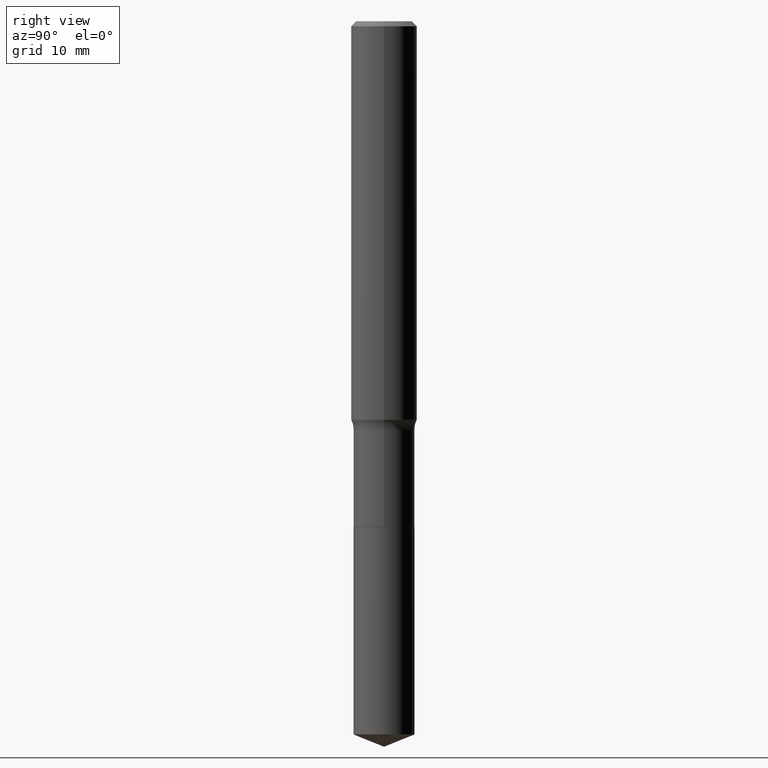
[diagram: clean part render]
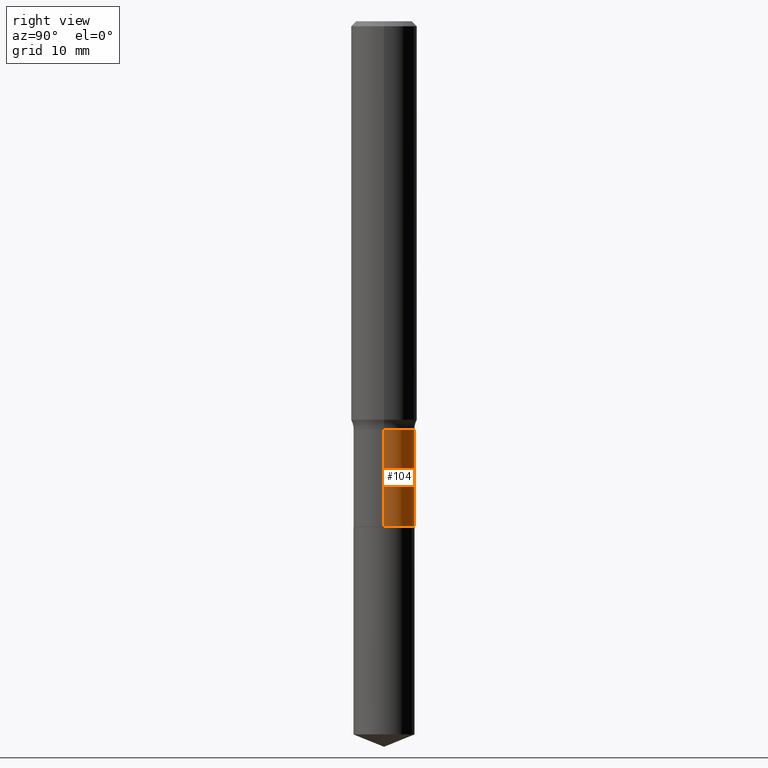
[diagram: same view with one face highlighted and labeled with its STEP entity id]
A machine part, right view. The second image highlights one B-rep face of the part: STEP entity #104.
In plain terms, the highlighted cylindrical surface (edge-blend (fillet) strip) has radius 2.7788 mm, axis along (-0, 0, 1).
Its self-contained STEP definition (entity closure, byte-faithful):
#18 = CARTESIAN_POINT ( 'NONE',  ( -0.1093999999999999834, 7.773337529215494852E-16, -5.381314988738866015E-30 ) ) ;
#25 = EDGE_CURVE ( 'NONE', #454, #120, #171, .T. ) ;
#41 = EDGE_LOOP ( 'NONE', ( #51, #150, #309, #203 ) ) ;
#51 = ORIENTED_EDGE ( 'NONE', *, *, #374, .T. ) ;
#84 = EDGE_CURVE ( 'NONE', #314, #240, #151, .T. ) ;
#104 = ADVANCED_FACE ( 'NONE', ( #461 ), #241, .T. ) ;
#120 = VERTEX_POINT ( 'NONE', #202 ) ;
#123 = DIRECTION ( 'NONE',  ( 1.000000000000000000, -6.982962677686269866E-15, 0.000000000000000000 ) ) ;
#124 = CARTESIAN_POINT ( 'NONE',  ( 0.000000000000000000, 0.000000000000000000, 0.000000000000000000 ) ) ;
#126 = DIRECTION ( 'NONE',  ( -2.445468806185136597E-29, 3.491481338843145583E-15, 1.000000000000000000 ) ) ;
#150 = ORIENTED_EDGE ( 'NONE', *, *, #25, .T. ) ;
#151 = LINE ( 'NONE', #304, #336 ) ;
#171 = LINE ( 'NONE', #18, #188 ) ;
#187 = CARTESIAN_POINT ( 'NONE',  ( 3.578209957210091410E-29, -5.108735494995289992E-15, -1.463199999999999834 ) ) ;
#188 = VECTOR ( 'NONE', #465, 39.37007874015748143 ) ;
#202 = CARTESIAN_POINT ( 'NONE',  ( -0.1093999999999999695, -4.937697476563853052E-15, -1.463199999999999834 ) ) ;
#203 = ORIENTED_EDGE ( 'NONE', *, *, #84, .F. ) ;
#205 = AXIS2_PLACEMENT_3D ( 'NONE', #124, #378, #423 ) ;
#215 = AXIS2_PLACEMENT_3D ( 'NONE', #417, #126, #123 ) ;
#240 = VERTEX_POINT ( 'NONE', #396 ) ;
#241 = CYLINDRICAL_SURFACE ( 'NONE', #205, 0.1093999999999999834 ) ;
#248 = CARTESIAN_POINT ( 'NONE',  ( -0.1093999999999999972, -4.937697476563853052E-15, -1.810499999999999998 ) ) ;
#259 = CARTESIAN_POINT ( 'NONE',  ( 0.1093999999999999972, -7.085263080914392852E-15, -1.810499999999999998 ) ) ;
#294 = DIRECTION ( 'NONE',  ( 1.000000000000000000, -6.982962677686271444E-15, 0.000000000000000000 ) ) ;
#295 = CIRCLE ( 'NONE', #215, 0.1093999999999999972 ) ;
#304 = CARTESIAN_POINT ( 'NONE',  ( 0.1093999999999999834, -7.639361169388774732E-16, 5.334537392720753208E-30 ) ) ;
#309 = ORIENTED_EDGE ( 'NONE', *, *, #329, .F. ) ;
#314 = VERTEX_POINT ( 'NONE', #259 ) ;
#329 = EDGE_CURVE ( 'NONE', #240, #120, #418, .T. ) ;
#336 = VECTOR ( 'NONE', #453, 39.37007874015748143 ) ;
#366 = AXIS2_PLACEMENT_3D ( 'NONE', #187, #367, #294 ) ;
#367 = DIRECTION ( 'NONE',  ( -2.445468806185136597E-29, 3.491481338843145583E-15, 1.000000000000000000 ) ) ;
#374 = EDGE_CURVE ( 'NONE', #314, #454, #295, .T. ) ;
#378 = DIRECTION ( 'NONE',  ( -2.445468806185136597E-29, 3.491481338843145583E-15, 1.000000000000000000 ) ) ;
#396 = CARTESIAN_POINT ( 'NONE',  ( 0.1093999999999999695, -5.872671611934168353E-15, -1.463199999999999834 ) ) ;
#417 = CARTESIAN_POINT ( 'NONE',  ( 4.427521273598189436E-29, -6.321326963975514491E-15, -1.810499999999999998 ) ) ;
#418 = CIRCLE ( 'NONE', #366, 0.1093999999999999695 ) ;
#423 = DIRECTION ( 'NONE',  ( 1.000000000000000000, -6.982962677686266711E-15, 4.876176775795935793E-29 ) ) ;
#453 = DIRECTION ( 'NONE',  ( -2.445468806185136877E-29, 3.491481338843145188E-15, 1.000000000000000000 ) ) ;
#454 = VERTEX_POINT ( 'NONE', #248 ) ;
#461 = FACE_OUTER_BOUND ( 'NONE', #41, .T. ) ;
#465 = DIRECTION ( 'NONE',  ( -2.445468806185136877E-29, 3.491481338843145188E-15, 1.000000000000000000 ) ) ;